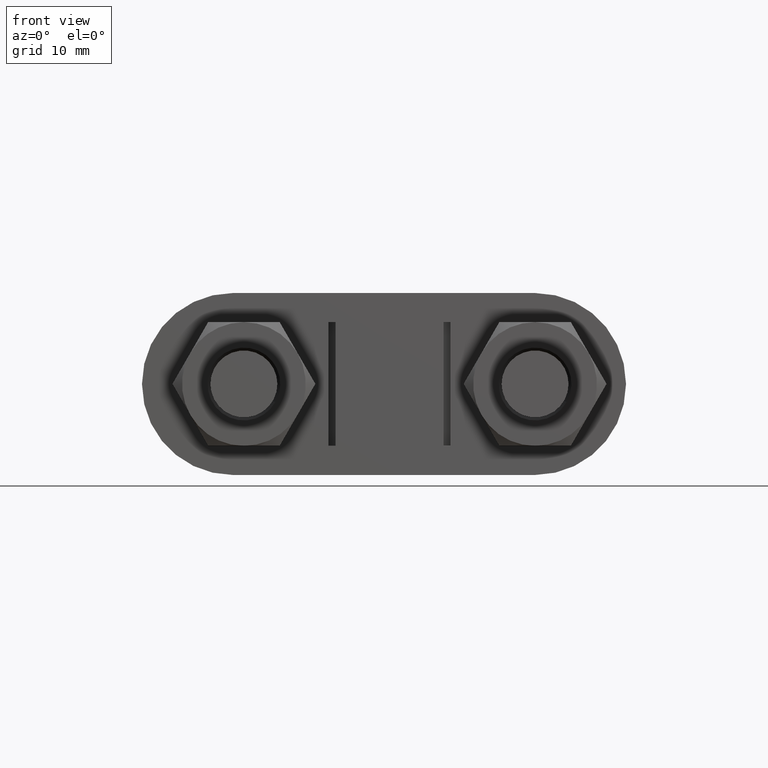
[diagram: clean part render]
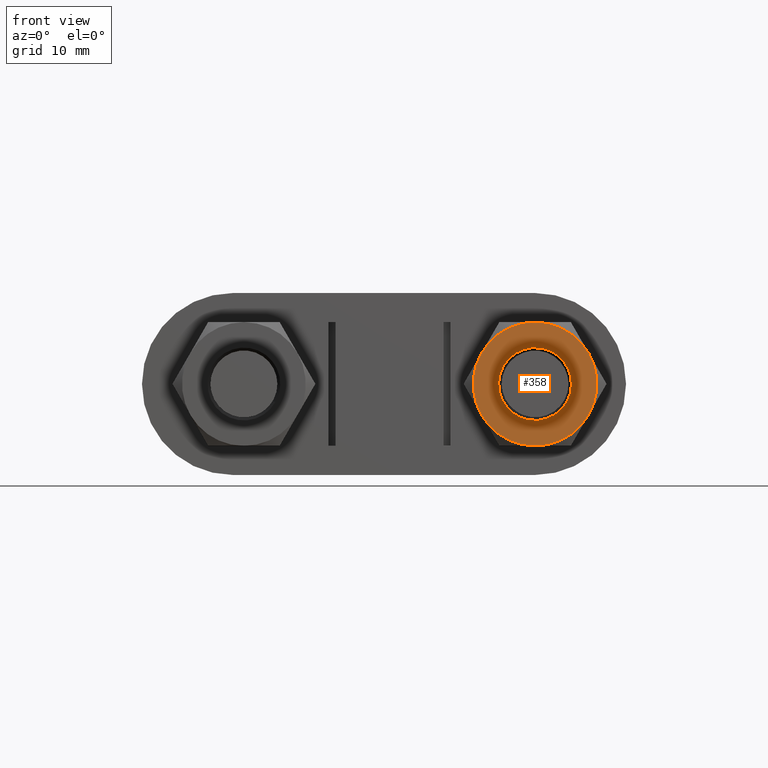
[diagram: same view with one face highlighted and labeled with its STEP entity id]
A machine part, front view. The second image highlights one B-rep face of the part: STEP entity #358.
In plain terms, the highlighted planar face has unit normal (0, 1, 0).
Its self-contained STEP definition (entity closure, byte-faithful):
#358 = ADVANCED_FACE( '', ( #589, #590 ), #591, .F. );
#589 = FACE_OUTER_BOUND( '', #1660, .T. );
#590 = FACE_BOUND( '', #1661, .T. );
#591 = PLANE( '', #1662 );
#1660 = EDGE_LOOP( '', ( #2367, #2368, #2369, #2370, #2371, #2372 ) );
#1661 = EDGE_LOOP( '', ( #2373 ) );
#1662 = AXIS2_PLACEMENT_3D( '', #2374, #2375, #2376 );
#2367 = ORIENTED_EDGE( '', *, *, #2725, .F. );
#2368 = ORIENTED_EDGE( '', *, *, #2726, .F. );
#2369 = ORIENTED_EDGE( '', *, *, #2727, .F. );
#2370 = ORIENTED_EDGE( '', *, *, #2728, .F. );
#2371 = ORIENTED_EDGE( '', *, *, #2723, .F. );
#2372 = ORIENTED_EDGE( '', *, *, #2729, .F. );
#2373 = ORIENTED_EDGE( '', *, *, #2730, .T. );
#2374 = CARTESIAN_POINT( '', ( 20.0000000000000, 18.0000000000002, 1.05612133621814E-015 ) );
#2375 = DIRECTION( '', ( 4.89842541528951E-016, 1.00000000000000, 6.12303176911188E-017 ) );
#2376 = DIRECTION( '', ( 0.866025399121842, -3.93600923194421E-016, -0.500000008075854 ) );
#2723 = EDGE_CURVE( '', #3088, #3090, #3091, .T. );
#2725 = EDGE_CURVE( '', #3093, #3094, #3095, .T. );
#2726 = EDGE_CURVE( '', #3096, #3093, #3097, .T. );
#2727 = EDGE_CURVE( '', #3098, #3096, #3099, .T. );
#2728 = EDGE_CURVE( '', #3090, #3098, #3100, .T. );
#2729 = EDGE_CURVE( '', #3094, #3088, #3101, .T. );
#2730 = EDGE_CURVE( '', #3102, #3102, #3103, .T. );
#3088 = VERTEX_POINT( '', #3830 );
#3090 = VERTEX_POINT( '', #3837 );
#3091 = CIRCLE( '', #3838, 8.50000000000000 );
#3093 = VERTEX_POINT( '', #3847 );
#3094 = VERTEX_POINT( '', #3848 );
#3095 = CIRCLE( '', #3849, 8.50000000000000 );
#3096 = VERTEX_POINT( '', #3850 );
#3097 = CIRCLE( '', #3851, 8.50000000000000 );
#3098 = VERTEX_POINT( '', #3852 );
#3099 = CIRCLE( '', #3853, 8.50000000000000 );
#3100 = CIRCLE( '', #3854, 8.50000000000000 );
#3101 = CIRCLE( '', #3855, 8.50000000000000 );
#3102 = VERTEX_POINT( '', #3856 );
#3103 = CIRCLE( '', #3857, 5.00000000000000 );
#3830 = CARTESIAN_POINT( '', ( 12.6387841074643, 18.0000000000003, 4.25000006864476 ) );
#3837 = CARTESIAN_POINT( '', ( 20.0000000792640, 18.0000000000002, 8.49999999999981 ) );
#3838 = AXIS2_PLACEMENT_3D( '', #4272, #4273, #4274 );
#3847 = CARTESIAN_POINT( '', ( 19.9999999207360, 18.0000000000003, -8.49999999999981 ) );
#3848 = CARTESIAN_POINT( '', ( 12.6387840282003, 18.0000000000003, -4.24999993135505 ) );
#3849 = AXIS2_PLACEMENT_3D( '', #4275, #4276, #4277 );
#3850 = CARTESIAN_POINT( '', ( 27.3612158925357, 18.0000000000002, -4.25000006864476 ) );
#3851 = AXIS2_PLACEMENT_3D( '', #4278, #4279, #4280 );
#3852 = CARTESIAN_POINT( '', ( 27.3612159717997, 18.0000000000002, 4.24999993135505 ) );
#3853 = AXIS2_PLACEMENT_3D( '', #4281, #4282, #4283 );
#3854 = AXIS2_PLACEMENT_3D( '', #4284, #4285, #4286 );
#3855 = AXIS2_PLACEMENT_3D( '', #4287, #4288, #4289 );
#3856 = CARTESIAN_POINT( '', ( 24.3301269956092, 18.0000000000002, -2.50000004037927 ) );
#3857 = AXIS2_PLACEMENT_3D( '', #4290, #4291, #4292 );
#4272 = CARTESIAN_POINT( '', ( 20.0000000000000, 18.0000000000002, 1.05612133621814E-015 ) );
#4273 = DIRECTION( '', ( 4.89842541528951E-016, 1.00000000000000, 6.12303176911188E-017 ) );
#4274 = DIRECTION( '', ( 0.866025399121842, -3.93600923194421E-016, -0.500000008075854 ) );
#4275 = CARTESIAN_POINT( '', ( 20.0000000000000, 18.0000000000002, 1.05612133621814E-015 ) );
#4276 = DIRECTION( '', ( 4.89842541528951E-016, 1.00000000000000, 6.12303176911188E-017 ) );
#4277 = DIRECTION( '', ( 0.866025399121842, -3.93600923194421E-016, -0.500000008075854 ) );
#4278 = CARTESIAN_POINT( '', ( 20.0000000000000, 18.0000000000002, 1.05612133621814E-015 ) );
#4279 = DIRECTION( '', ( 4.89842541528951E-016, 1.00000000000000, 6.12303176911188E-017 ) );
#4280 = DIRECTION( '', ( 0.866025399121842, -3.93600923194421E-016, -0.500000008075854 ) );
#4281 = CARTESIAN_POINT( '', ( 20.0000000000000, 18.0000000000002, 1.05612133621814E-015 ) );
#4282 = DIRECTION( '', ( 4.89842541528951E-016, 1.00000000000000, 6.12303176911188E-017 ) );
#4283 = DIRECTION( '', ( 0.866025399121842, -3.93600923194421E-016, -0.500000008075854 ) );
#4284 = CARTESIAN_POINT( '', ( 20.0000000000000, 18.0000000000002, 1.05612133621814E-015 ) );
#4285 = DIRECTION( '', ( 4.89842541528951E-016, 1.00000000000000, 6.12303176911188E-017 ) );
#4286 = DIRECTION( '', ( 0.866025399121842, -3.93600923194421E-016, -0.500000008075854 ) );
#4287 = CARTESIAN_POINT( '', ( 20.0000000000000, 18.0000000000002, 1.05612133621814E-015 ) );
#4288 = DIRECTION( '', ( 4.89842541528951E-016, 1.00000000000000, 6.12303176911188E-017 ) );
#4289 = DIRECTION( '', ( 0.866025399121842, -3.93600923194421E-016, -0.500000008075854 ) );
#4290 = CARTESIAN_POINT( '', ( 20.0000000000000, 18.0000000000002, 1.05612133621814E-015 ) );
#4291 = DIRECTION( '', ( 4.89842541528951E-016, 1.00000000000000, 6.12303176911189E-017 ) );
#4292 = DIRECTION( '', ( 0.866025399121842, -3.93600923194421E-016, -0.500000008075854 ) );